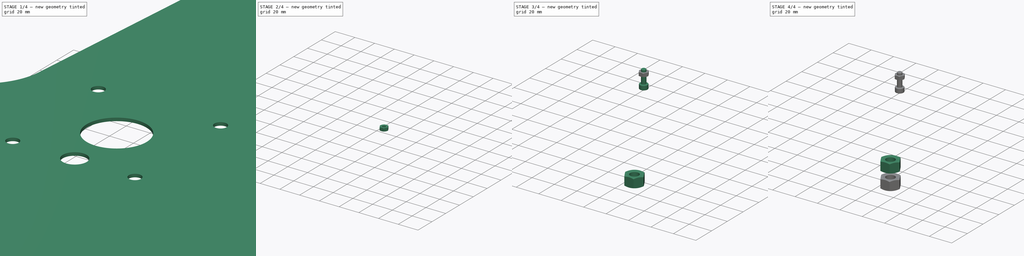
[diagram: build sequence overview — one tinted view per stage of 4, left to right]
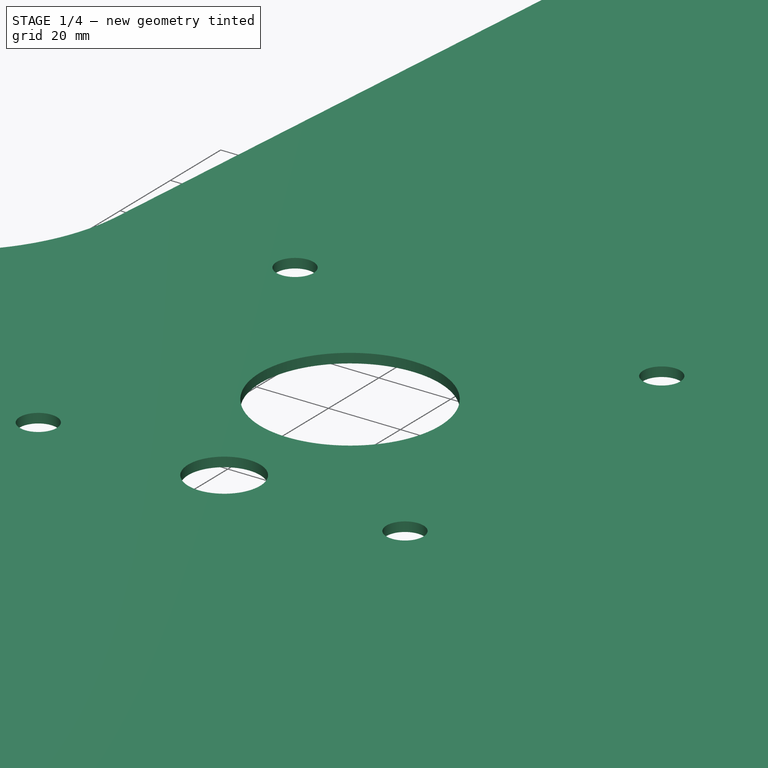
[diagram: stage 1 of 4 — iso view after this stage's code; geometry added in this stage tinted green]
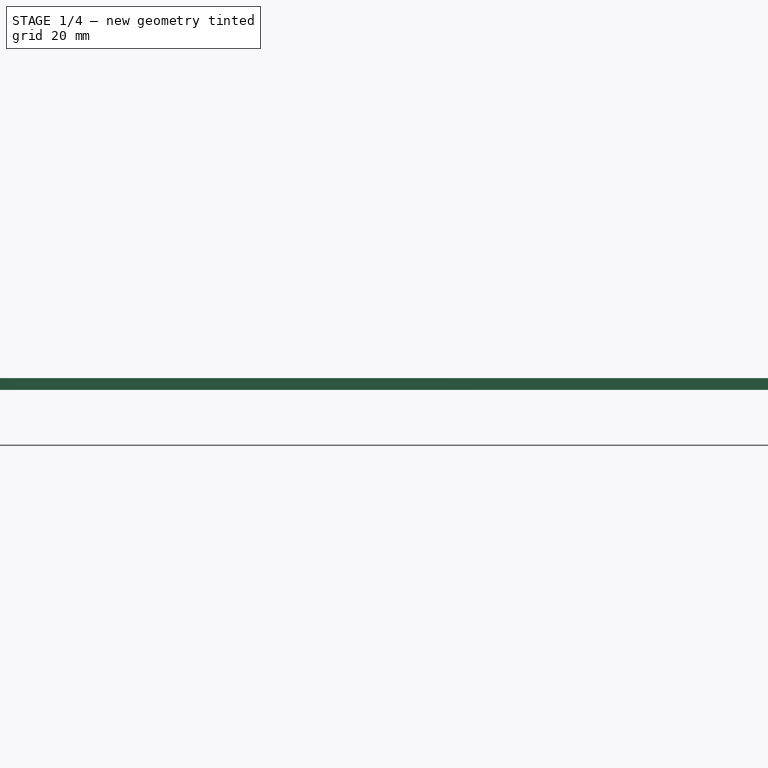
[diagram: stage 1 of 4 — front view after this stage's code; geometry added in this stage tinted green]
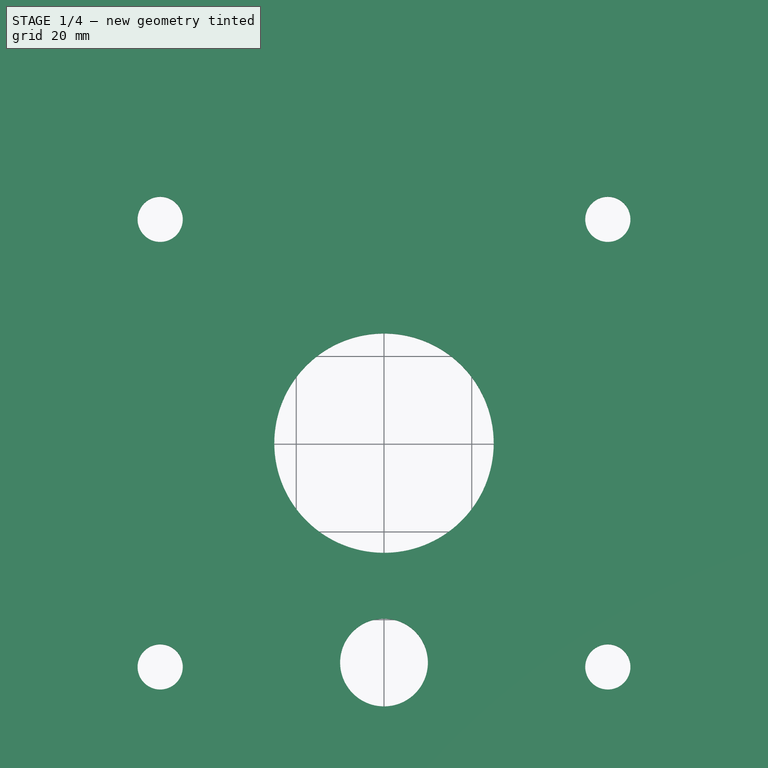
[diagram: stage 1 of 4 — top view after this stage's code; geometry added in this stage tinted green]
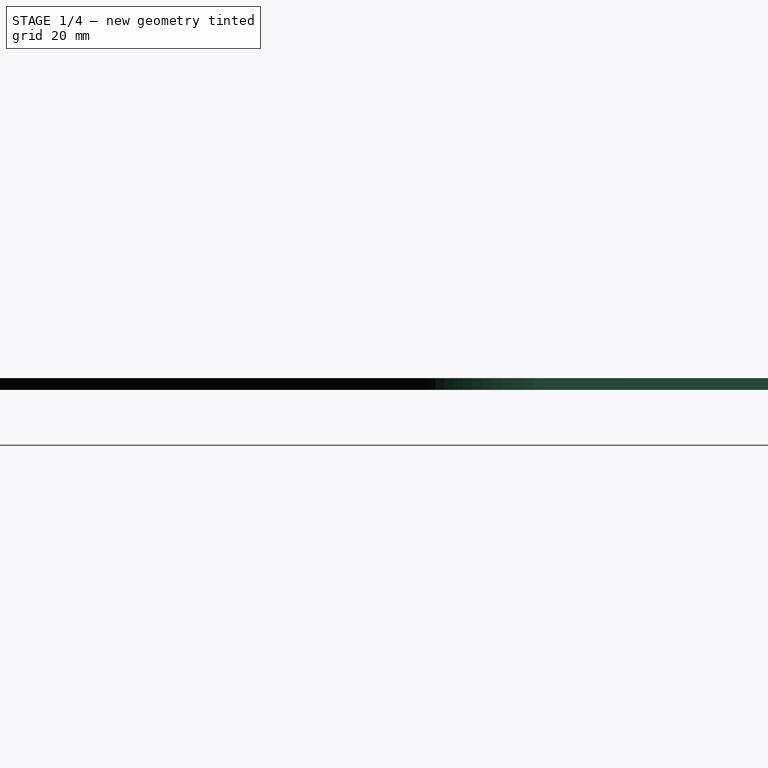
[diagram: stage 1 of 4 — right view after this stage's code; geometry added in this stage tinted green]
FCSTD DOCUMENT  (FreeCAD 0.20R29177 +426 (Git))
Label: ComputerPlatform
License: All rights reserved
LicenseURL: http://en.wikipedia.org/wiki/All_rights_reserved
objects: Part::FeaturePython×10, App::DocumentObjectGroup×7, Sketcher::SketchObject×4, PartDesign::CoordinateSystem×3, PartDesign::Hole×3, PartDesign::Pad×1, App::FeaturePython×1, PartDesign::Body×1, TechDraw::DrawSVGTemplate×1, TechDraw::DrawViewPart×1, TechDraw::DrawPage×1, App::Part×1
note: 26 computed .brp shape members not serialized (recipe doc carries the construction recipe); baked Part::Feature solids carry a one-line shape summary decoded from their .brp
EXTERNAL_REF file=DrivePlatform.FCStd obj=Sketch_1
EXTERNAL_REF file=Params.FCStd obj=Spreadsheet
EXTERNAL_REF file=PillowBlock.FCStd obj=Sketch001
EXTERNAL_REF file=GantryBracket.FCStd obj=Sketch
EXTERNAL_REF file=MotorBracket.FCStd obj=Sketch003

FEATURE [Sketcher::SketchObject] Sketch
  FullyConstrained = true
  MapMode = 5
  Support = -> [XY_Plane]
  expr: Constraints[21] = <<Params>>#<<Params>>.FrontSkateOffset + 33
  expr: Constraints[27] = <<DrivePlatform>>#<<Sketch_1>>.Constraints.BottomOffset + 10mm
  sketch-geometry (26):
    g0: LineSegment StartX=-200 StartY=-88.0112 StartZ=0 EndX=-200 EndY=-353.011 EndZ=0
    g1: LineSegment StartX=-197 StartY=-356.011 StartZ=0 EndX=197 EndY=-356.011 EndZ=0
    g2: LineSegment StartX=200 StartY=-353.011 StartZ=0 EndX=200 EndY=-88.0112 EndZ=0
    g3: Circle CenterX=0 CenterY=0 CenterZ=0 NormalX=0 NormalY=0 NormalZ=1 AngleXU=0 Radius=25
    g4: GeomPoint X=200 Y=-356.011 Z=0
    g5: GeomPoint X=-200 Y=-356.011 Z=0
    g6: ArcOfCircle CenterX=-180 CenterY=-88.0112 CenterZ=0 NormalX=0 NormalY=0 NormalZ=1 AngleXU=0 Radius=20 StartAngle=2.42945 EndAngle=3.14159
    g7: ArcOfCircle CenterX=180 CenterY=-88.0112 CenterZ=0 NormalX=0 NormalY=0 NormalZ=1 AngleXU=0 Radius=20 StartAngle=3e-16 EndAngle=0.71214
    g8: GeomPoint X=0 Y=-356.011 Z=0
    g9: LineSegment StartX=-60 StartY=383 StartZ=0 EndX=60 EndY=383 EndZ=0
    g10: GeomPoint X=0 Y=383 Z=0
    g11: ArcOfCircle CenterX=60 CenterY=369 CenterZ=0 NormalX=0 NormalY=0 NormalZ=1 AngleXU=0 Radius=14 StartAngle=0.0811809 EndAngle=1.5708
    g12: ArcOfCircle CenterX=-60 CenterY=369 CenterZ=0 NormalX=0 NormalY=0 NormalZ=1 AngleXU=0 Radius=14 StartAngle=1.5708 EndAngle=3.06041
    g13: LineSegment StartX=-180 StartY=-88.0112 StartZ=0 EndX=180 EndY=-88.0112 EndZ=0
    g14: ArcOfCircle CenterX=197 CenterY=-353.011 CenterZ=0 NormalX=0 NormalY=0 NormalZ=1 AngleXU=0 Radius=3 StartAngle=4.71239 EndAngle=6.28319
    g15: GeomPoint X=200 Y=-356.011 Z=0
    g16: ArcOfCircle CenterX=-197 CenterY=-353.011 CenterZ=0 NormalX=0 NormalY=0 NormalZ=1 AngleXU=0 Radius=3 StartAngle=3.14159 EndAngle=4.71239
    g17: GeomPoint X=-200 Y=-356.011 Z=0
    g18: LineSegment StartX=73.9539 StartY=370.135 StartZ=0 EndX=100 EndY=50 EndZ=0
    g19: ArcOfCircle CenterX=149.835 CenterY=54.0546 CenterZ=0 NormalX=0 NormalY=0 NormalZ=1 AngleXU=0 Radius=50 StartAngle=3.22277 EndAngle=3.85373
    g20: LineSegment StartX=111.987 StartY=21.3818 StartZ=0 EndX=195.139 EndY=-74.9421 EndZ=0
    g21: LineSegment StartX=-73.9539 StartY=370.135 StartZ=0 EndX=-100 EndY=50 EndZ=0
    g22: LineSegment StartX=-111.987 StartY=21.3818 StartZ=0 EndX=-195.139 EndY=-74.9421 EndZ=0
    g23: ArcOfCircle CenterX=-149.835 CenterY=54.0546 CenterZ=0 NormalX=0 NormalY=0 NormalZ=1 AngleXU=0 Radius=50 StartAngle=5.57105 EndAngle=6.202
    g24: LineSegment StartX=-100 StartY=50 StartZ=0 EndX=100 EndY=50 EndZ=0
    g25: Circle CenterX=0 CenterY=-50 CenterZ=0 NormalX=0 NormalY=0 NormalZ=1 AngleXU=0 Radius=10
  constraints (59):
    c: Vertical(g0)
    c: Horizontal(g1)
    c: Vertical(g2)
    c: DistanceX(g5,g4) = 400
    c: Diameter(g3) = 50
    c: Coincident(g3,g-1)
    c: PointOnObject(g8,g-2)
    c: Symmetric(g15,g17,g8)
    c: DistanceY(g17,g0) = 268
    c: Equal(g6,g7)
    c: Radius(g7) = 20
    c: Horizontal(g9)
    c: PointOnObject(g10,g-2)
    c: Tangent(g9,g11) = 1.5708
    c: Tangent(g9,g12) = 1.5708
    c: Radius(g11) = 14
    c: Coincident(g15,g4)
    c: Coincident(g17,g5)
    c: Equal(g11,g12)
    c: Symmetric(g9,g9,g10)
    c: DistanceX(g12,g11) = 120
    c: DistanceY(g3,g10) = 383
    c: Tangent(g7,g2) = -1.5708
    c: Tangent(g6,g0) = -1.5708
    c: Coincident(g13,g6)
    c: Coincident(g13,g7)
    c: Horizontal(g13)
    c: DistanceY(g7,g3) = 88.0112
    c: PointOnObject(g15,g2)
    c: PointOnObject(g15,g1)
    c: Tangent(g2,g14) = -1.5708
    c: Tangent(g1,g14) = -1.5708
    c: PointOnObject(g17,g0)
    c: PointOnObject(g17,g1)
    c: Tangent(g0,g16) = -1.5708
    c: Tangent(g1,g16) = -1.5708
    c: Equal(g16,g14)
    c: Radius(g14) = 3
    c: Tangent(g19,g18) = -1.5708
    c: Radius(g19) = 50
    c: Tangent(g20,g7) = 1.5708
    c: Tangent(g20,g19) = -1.5708
    c: Coincident(g21,g12)
    c: Tangent(g22,g6) = -1.5708
    c: Tangent(g23,g22) = 1.5708
    c: Tangent(g23,g21) = 1.5708
    c: Equal(g23,g19)
    c: Coincident(g24,g21)
    c: Coincident(g24,g18)
    c: Horizontal(g24)
    c: Equal(g22,g20)
    c: Equal(g18,g21)
    c: DistanceX(g24,g24) = 200
    c: DistanceY(g3,g18) = 50
    c: Tangent(g18,g11) = 1.5708
    c: DistanceY(g1,g9) = 739.011
    c: PointOnObject(g25,g-2)
    c: Diameter(g25) = 20
    c: DistanceY(g25,g3) = 50
FEATURE [PartDesign::Pad] Pad
  Direction = (0,0,1)
  Length = 2.656
  Length2 = 10
  Profile = -> Sketch
  ReferenceAxis = -> Sketch [N_Axis]
  Type = 0
  expr: Length = <<Params>>#<<Params>>.SheetMetalThickness
FEATURE [App::DocumentObjectGroup] Parts
FEATURE [PartDesign::CoordinateSystem] LCS_Origin
  AttacherType = Attacher::AttachEngine3D
  MapMode = 2
  Support = -> [X_Axis001]
FEATURE [App::FeaturePython] Variables  # WARN: FeaturePython — macro-defined, semantics opaque (R4)
  Type = App::PropertyContainer
FEATURE [App::DocumentObjectGroup] Constraints
FEATURE [App::DocumentObjectGroup] Configurations
FEATURE [PartDesign::CoordinateSystem] LCS_TopPivot
  AttacherType = Attacher::AttachEngine3D
  AttachmentOffset = pos=(0,0,2.656) rot=(0,0,1;0rad)
  MapMode = 2
  Placement = pos=(0,0,2.656) rot=(0,0,1;0rad)
  Support = -> [LCS_Origin]
  expr: .AttachmentOffset.Base.z = <<Pad>>.Length
FEATURE [Sketcher::SketchObject] Sketch001
  FullyConstrained = true
  MapMode = 5
  Support = -> [XY_Plane]
  expr: Constraints[11] = <<PillowBlock>>#<<Sketch001>>.Constraints.MountHoleSpacing
  sketch-geometry (6):
    g0: Circle CenterX=51.005 CenterY=51.005 CenterZ=0 NormalX=0 NormalY=0 NormalZ=1 AngleXU=0 Radius=2.5
    g1: Circle CenterX=-51.005 CenterY=51.005 CenterZ=0 NormalX=0 NormalY=0 NormalZ=1 AngleXU=0 Radius=2.5
    g2: Circle CenterX=-51.005 CenterY=-51.005 CenterZ=0 NormalX=0 NormalY=0 NormalZ=1 AngleXU=0 Radius=2.5
    g3: Circle CenterX=51.005 CenterY=-51.005 CenterZ=0 NormalX=0 NormalY=0 NormalZ=1 AngleXU=0 Radius=2.5
    g4: LineSegment StartX=51.005 StartY=51.005 StartZ=0 EndX=51.005 EndY=-51.005 EndZ=0
    g5: LineSegment StartX=51.005 StartY=51.005 StartZ=0 EndX=-51.005 EndY=51.005 EndZ=0
  constraints (14):
    c: Coincident(g4,g0)
    c: Coincident(g4,g3)
    c: Coincident(g5,g0)
    c: Coincident(g5,g1)
    c: Equal(g5,g4)
    c: Vertical(g4)
    c: Horizontal(g5)
    c: Equal(g0,g1)
    c: Equal(g1,g2)
    c: Equal(g2,g3)
    c: Diameter(g0) = 5
    c: DistanceY(g4,g4) = 102.01
    c: Symmetric(g3,g1,g-1)
    c: Symmetric(g2,g0,g-1)
FEATURE [PartDesign::Hole] Hole  label="BaseMountHoles"
  BaseFeature = -> Pad
  CustomThreadClearance = 0
  Depth = 1522.85
  DepthType = 1
  Diameter = 10.3
  DrillForDepth = false
  DrillPoint = 1
  DrillPointAngle = 118
  HoleCutCountersinkAngle = 90
  HoleCutCustomValues = false
  HoleCutDepth = 0
  HoleCutDiameter = 12
  HoleCutType = 0
  ModelThread = false
  Profile = -> Sketch001
  Reversed = true
  Tapered = false
  TaperedAngle = 90
  ThreadClass = 0
  ThreadDepth = 1522.85
  ThreadDepthType = 0
  ThreadDirection = 0
  ThreadFit = 0
  ThreadSize = 11
  ThreadType = 3
  Threaded = false
  UseCustomThreadClearance = false
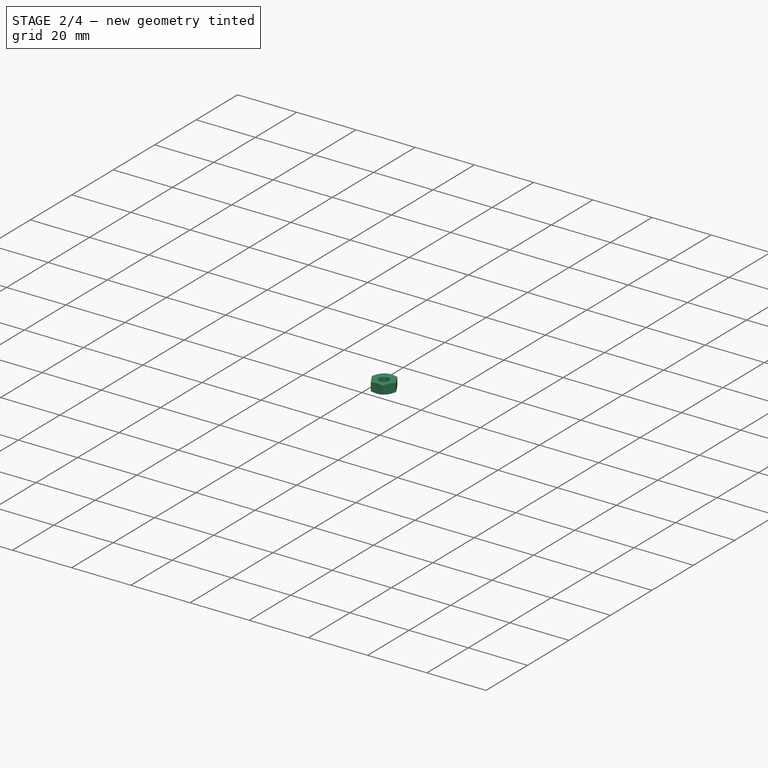
[diagram: stage 2 of 4 — iso view after this stage's code; geometry added in this stage tinted green]
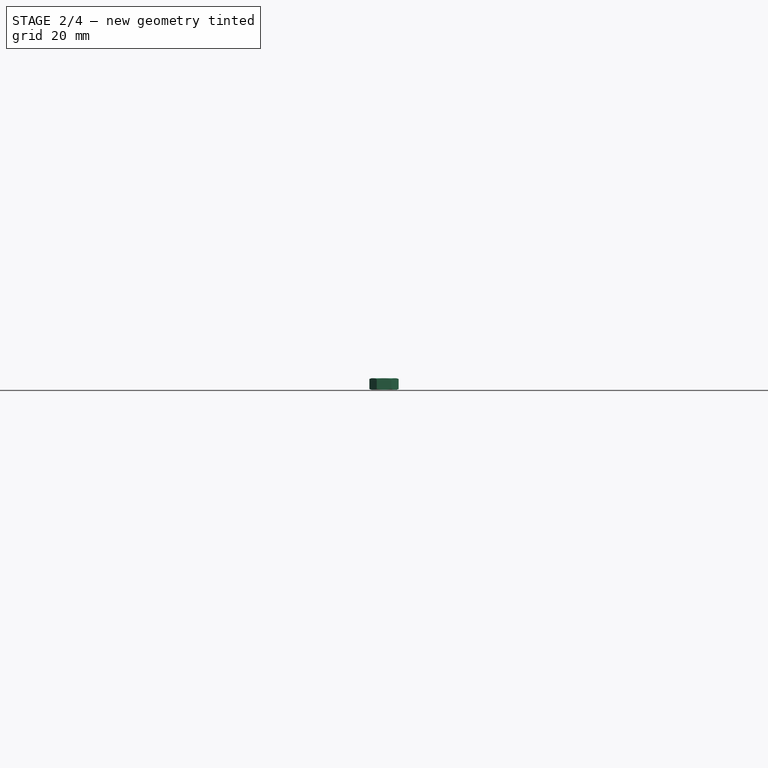
[diagram: stage 2 of 4 — front view after this stage's code; geometry added in this stage tinted green]
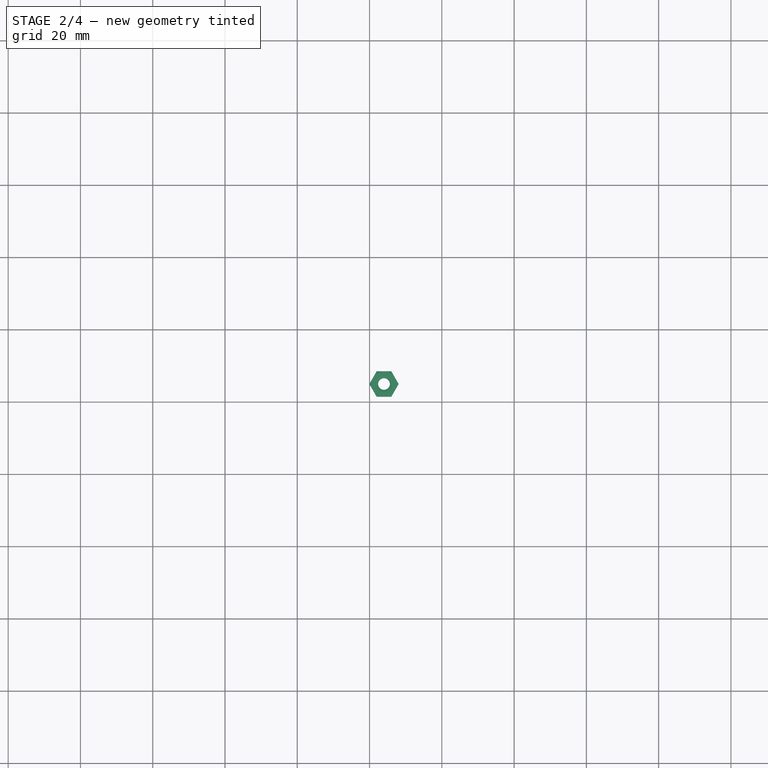
[diagram: stage 2 of 4 — top view after this stage's code; geometry added in this stage tinted green]
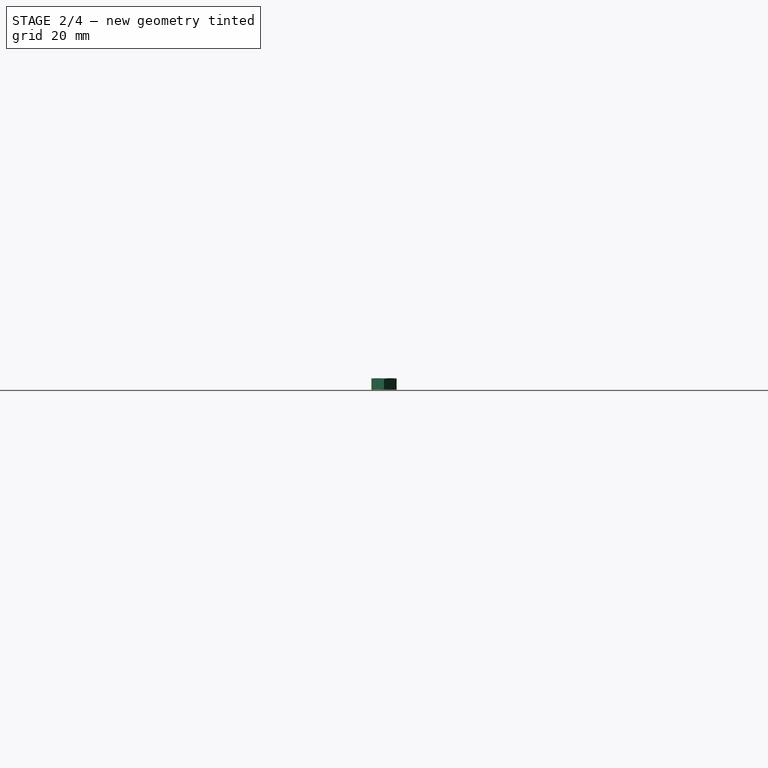
[diagram: stage 2 of 4 — right view after this stage's code; geometry added in this stage tinted green]
FEATURE [Sketcher::SketchObject] Sketch002
  FullyConstrained = true
  MapMode = 5
  Support = -> [XY_Plane]
  expr: Constraints[15] = <<Params>>#<<Params>>.FrontSkateOffset
  expr: Constraints[19] = <<Params>>#<<Params>>.ExtensionArmCenterOffset
  expr: Constraints[2] = <<GantryBracket>>#<<Sketch>>.Constraints.HoleSpacing
  expr: Constraints[7] = <<Params>>#<<Params>>.RearSkateOffset
  sketch-geometry (9):
    g0: Circle CenterX=42.85 CenterY=-150 CenterZ=0 NormalX=0 NormalY=0 NormalZ=1 AngleXU=0 Radius=1
    g1: Circle CenterX=3.15 CenterY=-150 CenterZ=0 NormalX=0 NormalY=0 NormalZ=1 AngleXU=0 Radius=1
    g2: LineSegment StartX=3.15 StartY=-150 StartZ=0 EndX=42.85 EndY=-150 EndZ=0
    g3: GeomPoint X=23 Y=-150 Z=0
    g4: Circle CenterX=42.85 CenterY=350 CenterZ=0 NormalX=0 NormalY=0 NormalZ=1 AngleXU=0 Radius=1
    g5: Circle CenterX=3.15 CenterY=350 CenterZ=0 NormalX=0 NormalY=0 NormalZ=1 AngleXU=0 Radius=1
    g6: LineSegment StartX=3.15 StartY=350 StartZ=0 EndX=42.85 EndY=350 EndZ=0
    g7: GeomPoint X=23 Y=350 Z=0
    g8: LineSegment StartX=23 StartY=-150 StartZ=0 EndX=23 EndY=350 EndZ=0
  constraints (20):
    c: Equal(g0,g1)
    c: Diameter(g0) = 2
    c: DistanceX(g1,g0) = 39.7
    c: Coincident(g2,g1)
    c: Coincident(g2,g0)
    c: Horizontal(g2)
    c: Symmetric(g1,g0,g3)
    c: DistanceY(g3,g-1) = 150
    c: Equal(g4,g5)
    c: Equal(g0,g4) = 2
    c: Coincident(g6,g5)
    c: Coincident(g6,g4)
    c: Horizontal(g6)
    c: Symmetric(g5,g4,g7)
    c: Equal(g6,g2)
    c: DistanceY(g-1,g5) = 350
    c: Coincident(g8,g3)
    c: Vertical(g8)
    c: Coincident(g8,g7)
    c: DistanceX(g-1,g3) = 23
FEATURE [PartDesign::Hole] Hole001  label="ArmSkateMountHoles"
  BaseFeature = -> Hole
  CustomThreadClearance = 0
  Depth = 1522.85
  DepthType = 1
  Diameter = 5.5
  DrillForDepth = false
  DrillPoint = 1
  DrillPointAngle = 118
  HoleCutCountersinkAngle = 90
  HoleCutCustomValues = false
  HoleCutDepth = 0
  HoleCutDiameter = 6.1
  HoleCutType = 0
  ModelThread = false
  Profile = -> Sketch002
  Reversed = true
  Tapered = false
  TaperedAngle = 90
  ThreadClass = 0
  ThreadDepth = 1522.85
  ThreadDepthType = 0
  ThreadDirection = 0
  ThreadFit = 0
  ThreadSize = 13
  ThreadType = 1
  Threaded = false
  UseCustomThreadClearance = false
FEATURE [Sketcher::SketchObject] Sketch003
  AttachmentOffset = pos=(-36,100,0) rot=(0,0,1;0rad)
  FullyConstrained = true
  MapMode = 5
  Placement = pos=(-36,100,0) rot=(0,0,1;0rad)
  Support = -> [XY_Plane]
  expr: .AttachmentOffset.Base.x = <<Params>>#<<Params>>.ExtensionDriverOffsetY
  expr: .AttachmentOffset.Base.y = <<Params>>#<<Params>>.ExtensionDriverOffsetX
  expr: Constraints[7] = <<MotorBracket>>#<<SlotSketch>>.Constraints.SlotOffsetX * 2
  sketch-geometry (4):
    g0: Circle CenterX=0 CenterY=15 CenterZ=0 NormalX=0 NormalY=0 NormalZ=1 AngleXU=0 Radius=1
    g1: Circle CenterX=0 CenterY=-15 CenterZ=0 NormalX=0 NormalY=0 NormalZ=1 AngleXU=0 Radius=1
    g2: LineSegment StartX=0 StartY=15 StartZ=0 EndX=0 EndY=-15 EndZ=0
    g3: GeomPoint X=0 Y=0 Z=0
  constraints (8):
    c: Coincident(g2,g0)
    c: Coincident(g2,g1)
    c: Vertical(g2)
    c: Equal(g1,g0)
    c: Diameter(g1) = 2
    c: Symmetric(g1,g0,g3)
    c: Coincident(g-1,g3)
    c: DistanceY(g2,g2) = 30
FEATURE [PartDesign::Hole] Hole002  label="ExtensionDriverMountHoles"
  BaseFeature = -> Hole001
  CustomThreadClearance = 0
  Depth = 25
  DepthType = 0
  Diameter = 4.5
  DrillForDepth = false
  DrillPoint = 1
  DrillPointAngle = 118
  HoleCutCountersinkAngle = 90
  HoleCutCustomValues = false
  HoleCutDepth = 0
  HoleCutDiameter = 6.1
  HoleCutType = 0
  ModelThread = false
  Profile = -> Sketch003
  Reversed = true
  Tapered = false
  TaperedAngle = 90
  ThreadClass = 0
  ThreadDepth = 25
  ThreadDepthType = 0
  ThreadDirection = 0
  ThreadFit = 0
  ThreadSize = 11
  ThreadType = 1
  Threaded = false
  UseCustomThreadClearance = false
FEATURE [Part::FeaturePython] Nut005  label="M4-Nut"  # Fasteners workbench fastener (typed FeaturePython)
  Placement = pos=(-36,85,2.656) rot=(0,0,1;0rad)
  baseObject = -> Body [Edge51]
  diameter = 6
  invert = false
  leftHanded = false
  matchOuter = false
  offset = 0
  thread = false
  type = 22
FEATURE [App::DocumentObjectGroup] ExtensionDriver
  Group = -> [Screw,Nut005]
FEATURE [App::DocumentObjectGroup] Fasteners
  Group = -> [Top,Bottom,ExtensionDriver]
FEATURE [App::Part] Assembly
  AssemblyType = Part::Link
  Group = -> [Variables,Constraints,Configurations,Body,Fasteners,Top,Bottom,ExtensionDriver,LCS_ExtensionDriver,LCS_TopPivot,LCS_Origin,Washer,Nut,Washer004,Nut004,Circular_Nut,Circular_Washer004,Circular_Nut004,Circular_Washer,Screw,Nut005]
  Origin = -> Origin001
  Type = Assembly
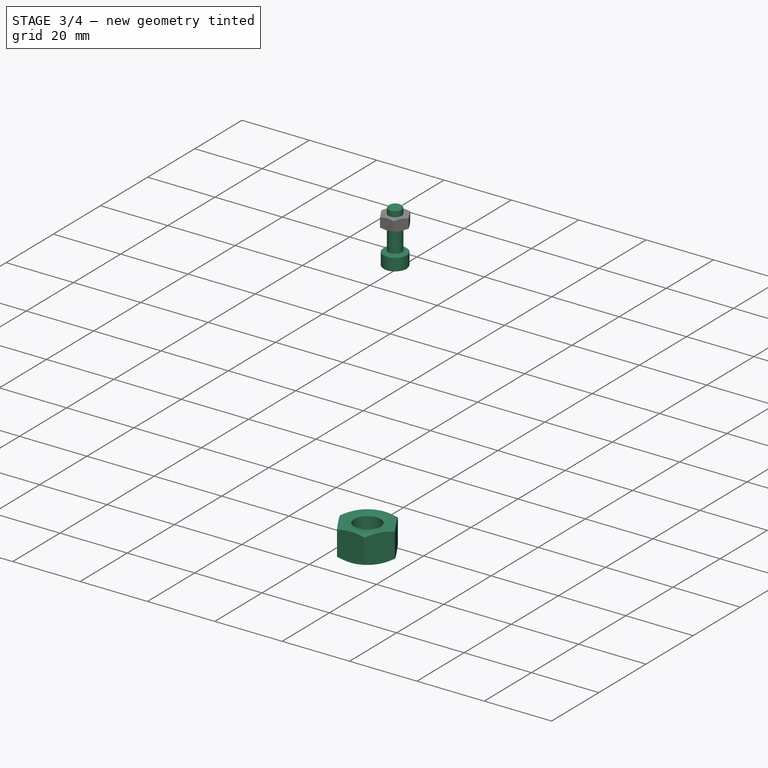
[diagram: stage 3 of 4 — iso view after this stage's code; geometry added in this stage tinted green]
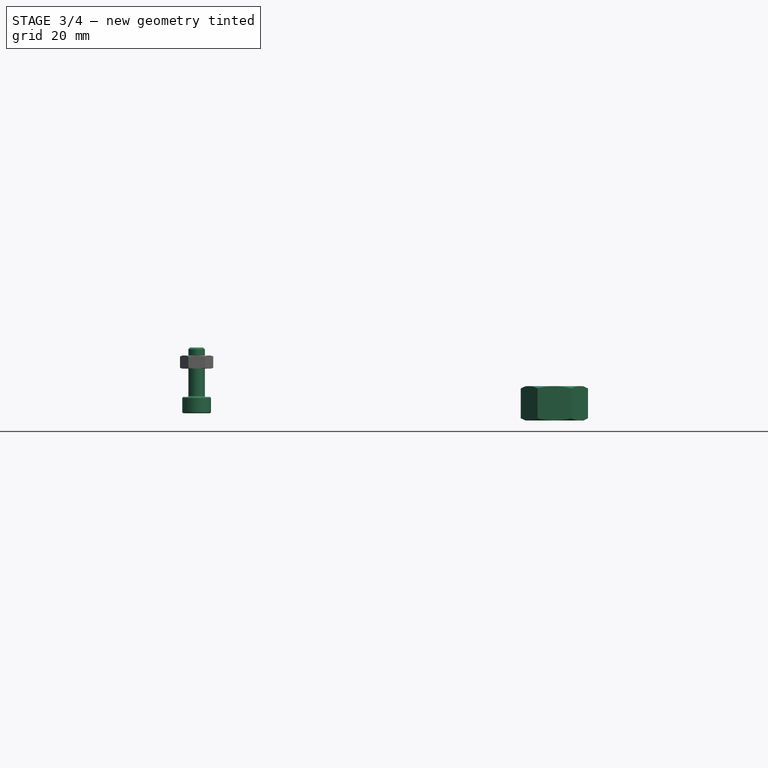
[diagram: stage 3 of 4 — front view after this stage's code; geometry added in this stage tinted green]
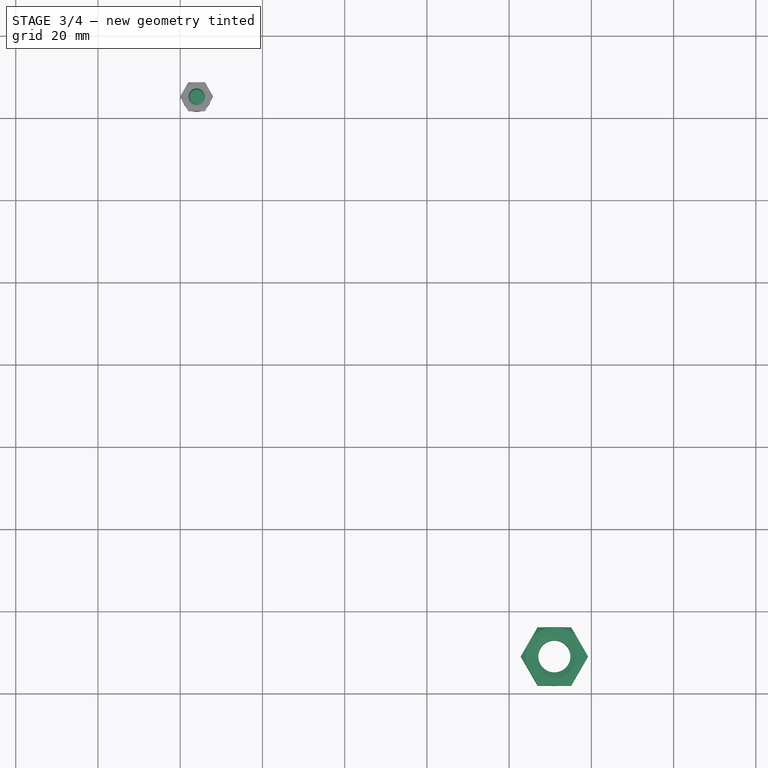
[diagram: stage 3 of 4 — top view after this stage's code; geometry added in this stage tinted green]
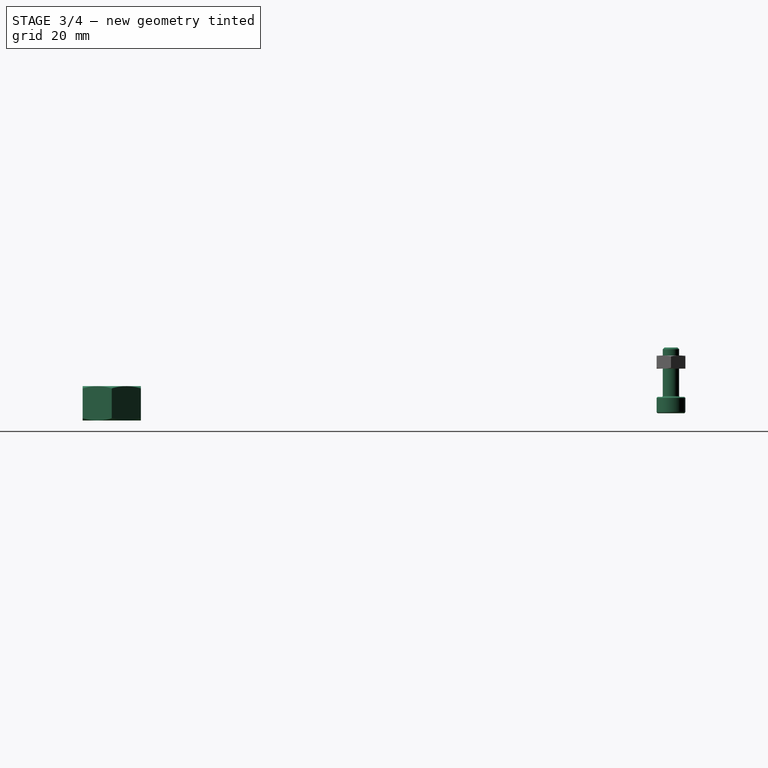
[diagram: stage 3 of 4 — right view after this stage's code; geometry added in this stage tinted green]
FEATURE [Part::FeaturePython] Washer  label="3/8in-Washer001"  # Fasteners workbench fastener (typed FeaturePython)
  Placement = pos=(51.005,-51.005,0) rot=(1,0,0;3.14159rad)
  baseObject = -> Sketch001 [Edge4]
  diameter = 13
  invert = true
  matchOuter = true
  offset = 0
  type = 1
FEATURE [Part::FeaturePython] Nut  label="3/8in-Nut001"  # Fasteners workbench fastener (typed FeaturePython)
  Placement = pos=(51.005,-51.005,-1.6002) rot=(1,0,0;3.14159rad)
  baseObject = -> Washer [Edge1]
  diameter = 3
  invert = false
  leftHanded = false
  matchOuter = true
  offset = 0
  thread = false
  type = 1
FEATURE [PartDesign::Body] Body
  Group = -> [Sketch,Pad,Sketch001,Hole,Sketch002,Hole001,Sketch003,Hole002]
  Origin = -> Origin
  Tip = -> Hole002
FEATURE [PartDesign::CoordinateSystem] LCS_ExtensionDriver
  AttacherType = Attacher::AttachEngine3D
  MapMode = 2
  Placement = pos=(-36,100,0) rot=(0,0,1;0rad)
  Support = -> [Sketch003]
FEATURE [TechDraw::DrawSVGTemplate] Template
  Height = 841
  Orientation = 1
  Width = 1189
FEATURE [TechDraw::DrawViewPart] View
  CoarseView = false
  Direction = (0,0,-1)
  Focus = 100
  HardHidden = false
  IsoCount = 0
  IsoHidden = false
  IsoVisible = false
  LockPosition = false
  Perspective = false
  Rotation = 0
  ScaleType = 0
  SeamHidden = false
  SeamVisible = true
  SmoothHidden = false
  SmoothVisible = true
  Source = -> [Hole002]
  X = 208.005
  XDirection = (1,0,0)
  Y = 379.986
FEATURE [TechDraw::DrawPage] Page
  KeepUpdated = true
  NextBalloonIndex = 1
  ProjectionType = 0
  Template = -> Template
  Views = -> [View]
FEATURE [Part::FeaturePython] Circular_Nut004  label="Circular_3/8in-Nut"  # Draft array (typed FeaturePython)
  AngleStep = 90
  ArrayType = Circular Array
  Axis = -> LCS_TopPivot [Z]
  AxisPlacement = pos=(0,0,2.656) rot=(0,0,1;0rad)
  Count = 4
  Index = 1
  PlacementList = 4 placements: [(51.005,-51.005,4.2562),(51.005,51.005,4.2562),(-51.005,51.005,4.2562),(-51.005,-51.005,4.2562)]
  Placer = pos=(0,0,0) rot=(0,0,1;4.71239rad)
  ScaleList = (4) [(1,1,1),(1,1,1),(1,1,1),(1,1,1)]
  Scaler = 1
  ShowElement = false
  SourceObject = -> Nut004
  expr: .Placer.Rotation.Angle = AngleStep * Index
  expr: AngleStep = 360 / Count
FEATURE [Part::FeaturePython] Circular_Washer004  label="Circular_3/8in-Washer"  # Draft array (typed FeaturePython)
  AngleStep = 90
  ArrayType = Circular Array
  Axis = -> LCS_TopPivot [Z]
  AxisPlacement = pos=(0,0,2.656) rot=(0,0,1;0rad)
  Count = 4
  Index = 1
  PlacementList = 4 placements: [(51.005,-51.005,2.656),(51.005,51.005,2.656),(-51.005,51.005,2.656),(-51.005,-51.005,2.656)]
  Placer = pos=(0,0,0) rot=(0,0,1;4.71239rad)
  ScaleList = (4) [(1,1,1),(1,1,1),(1,1,1),(1,1,1)]
  Scaler = 1
  ShowElement = false
  SourceObject = -> Washer004
  expr: .Placer.Rotation.Angle = AngleStep * Index
  expr: AngleStep = 360 / Count
FEATURE [App::DocumentObjectGroup] Top
  Group = -> [Washer004,Nut004,Circular_Nut004,Circular_Washer004]
FEATURE [Part::FeaturePython] Circular_Nut  label="Circular_3/8in-Nut001"  # Draft array (typed FeaturePython)
  AngleStep = 90
  ArrayType = Circular Array
  Axis = -> LCS_TopPivot [Z]
  AxisPlacement = pos=(0,0,2.656) rot=(0,0,1;0rad)
  Count = 4
  Index = 1
  PlacementList = 4 placements: [(51.005,-51.005,-1.6002),(51.005,51.005,-1.6002),(-51.005,51.005,-1.6002),(-51.005,-51.005,-1.6002)]
  Placer = pos=(0,0,0) rot=(0,0,1;4.71239rad)
  ScaleList = (4) [(1,1,1),(1,1,1),(1,1,1),(1,1,1)]
  Scaler = 1
  ShowElement = false
  SourceObject = -> Nut
  expr: .Placer.Rotation.Angle = AngleStep * Index
  expr: AngleStep = 360 / Count
FEATURE [Part::FeaturePython] Circular_Washer  label="Circular_3/8in-Washer001"  # Draft array (typed FeaturePython)
  AngleStep = 90
  ArrayType = Circular Array
  Axis = -> LCS_TopPivot [Z]
  AxisPlacement = pos=(0,0,2.656) rot=(0,0,1;0rad)
  Count = 4
  Index = 1
  PlacementList = 4 placements: [(51.005,-51.005,0),(51.005,51.005,-4.44089e-16),(-51.005,51.005,0),(-51.005,-51.005,0)]
  Placer = pos=(0,0,0) rot=(0,0,1;4.71239rad)
  ScaleList = (4) [(1,1,1),(1,1,1),(1,1,1),(1,1,1)]
  Scaler = 1
  ShowElement = false
  SourceObject = -> Washer
  expr: .Placer.Rotation.Angle = AngleStep * Index
  expr: AngleStep = 360 / Count
FEATURE [App::DocumentObjectGroup] Bottom
  Group = -> [Washer,Nut,Circular_Nut,Circular_Washer]
FEATURE [Part::FeaturePython] Screw  label="M4x12-Screw"  # Fasteners workbench fastener (typed FeaturePython)
  Placement = pos=(-36,85,-4.2) rot=(-1,0,0;3.14159rad)
  baseObject = -> Body [Edge26]
  diameter = 5
  invert = false
  leftHanded = false
  length = 3
  lengthCustom = 12
  matchOuter = false
  offset = 4.2
  thread = false
  type = 45
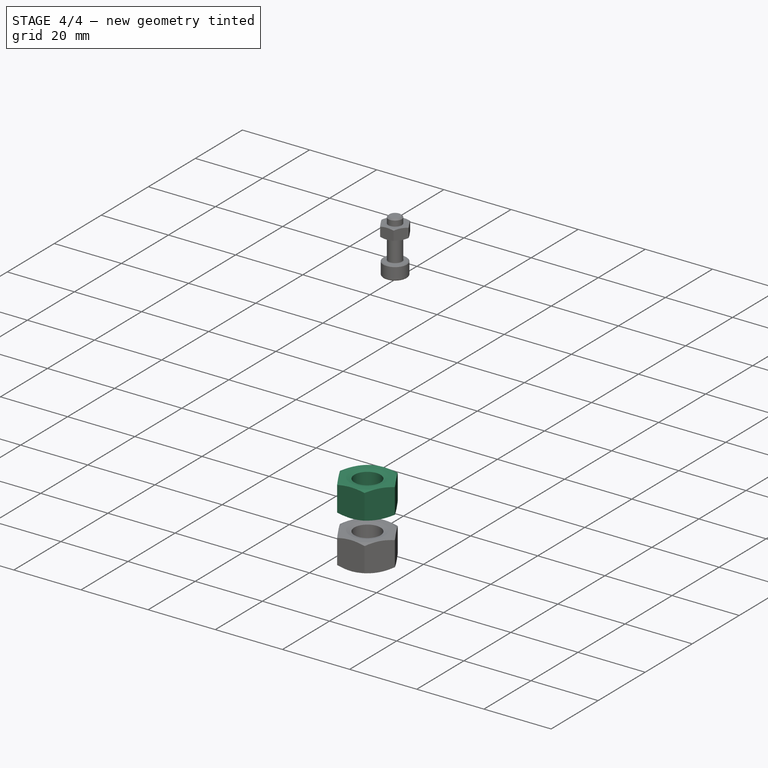
[diagram: stage 4 of 4 — iso view after this stage's code; geometry added in this stage tinted green]
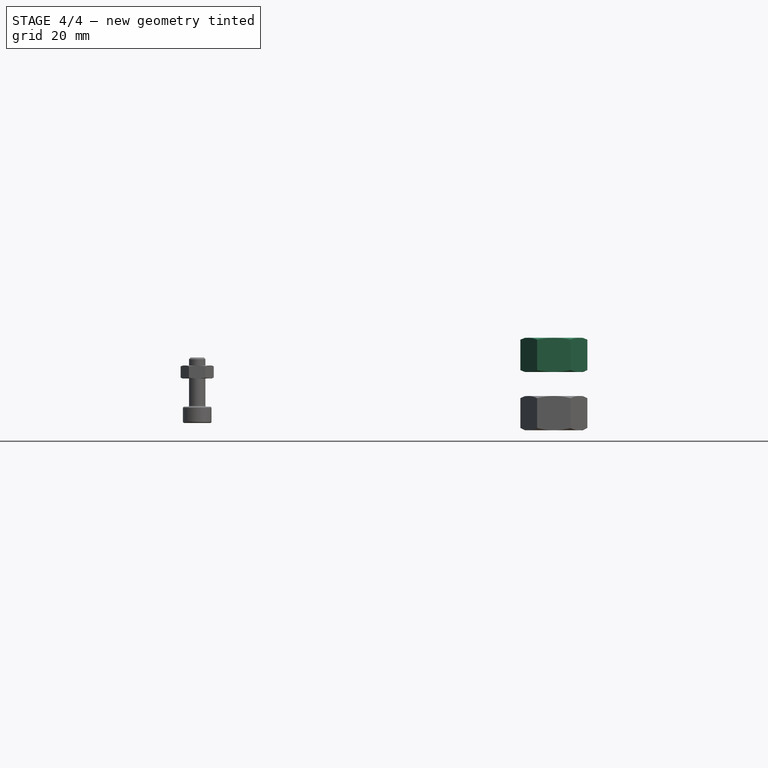
[diagram: stage 4 of 4 — front view after this stage's code; geometry added in this stage tinted green]
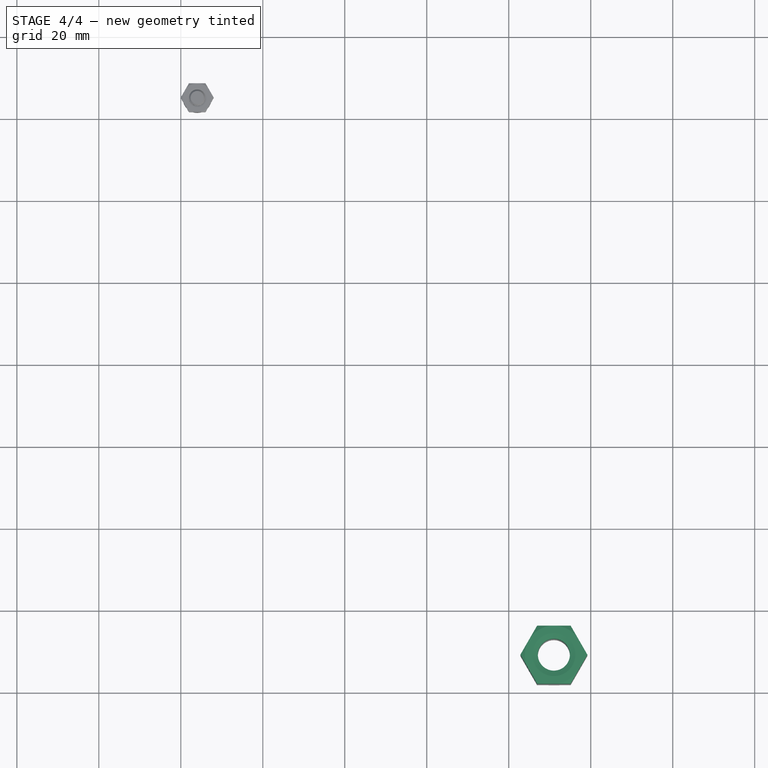
[diagram: stage 4 of 4 — top view after this stage's code; geometry added in this stage tinted green]
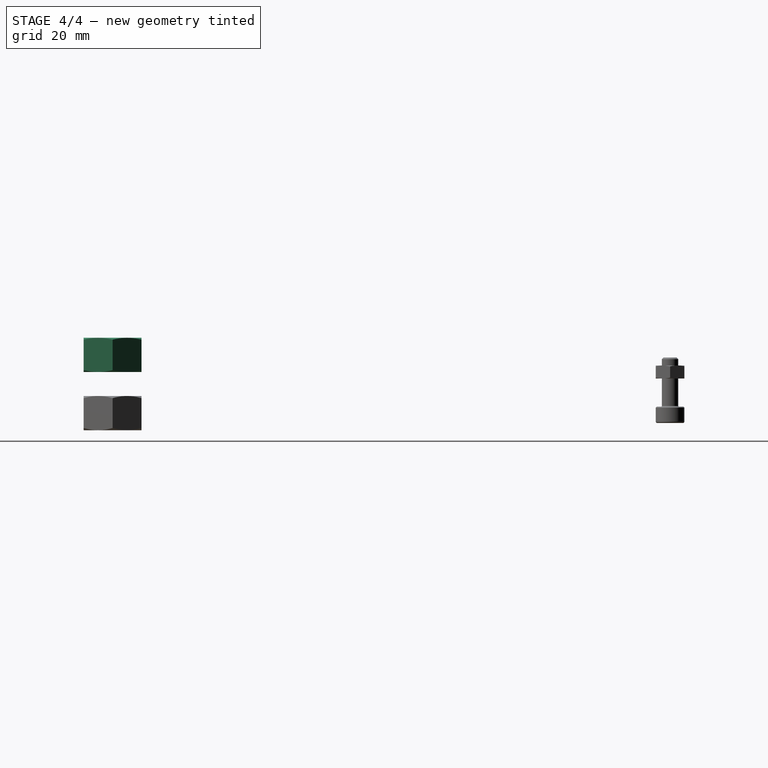
[diagram: stage 4 of 4 — right view after this stage's code; geometry added in this stage tinted green]
FEATURE [Part::FeaturePython] Washer004  label="3/8in-Washer"  # Fasteners workbench fastener (typed FeaturePython)
  Placement = pos=(51.005,-51.005,2.656) rot=(0,0,1;0rad)
  baseObject = -> Sketch001 [Edge4]
  diameter = 13
  invert = false
  matchOuter = false
  offset = 2.656
  type = 0
  expr: offset = <<Params>>#<<Params>>.SheetMetalThickness
FEATURE [Part::FeaturePython] Nut004  label="3/8in-Nut"  # Fasteners workbench fastener (typed FeaturePython)
  Placement = pos=(51.005,-51.005,4.2562) rot=(0,0,1;0rad)
  baseObject = -> Washer004 [Edge1]
  diameter = 3
  invert = false
  leftHanded = false
  matchOuter = false
  offset = 0
  thread = false
  type = 1
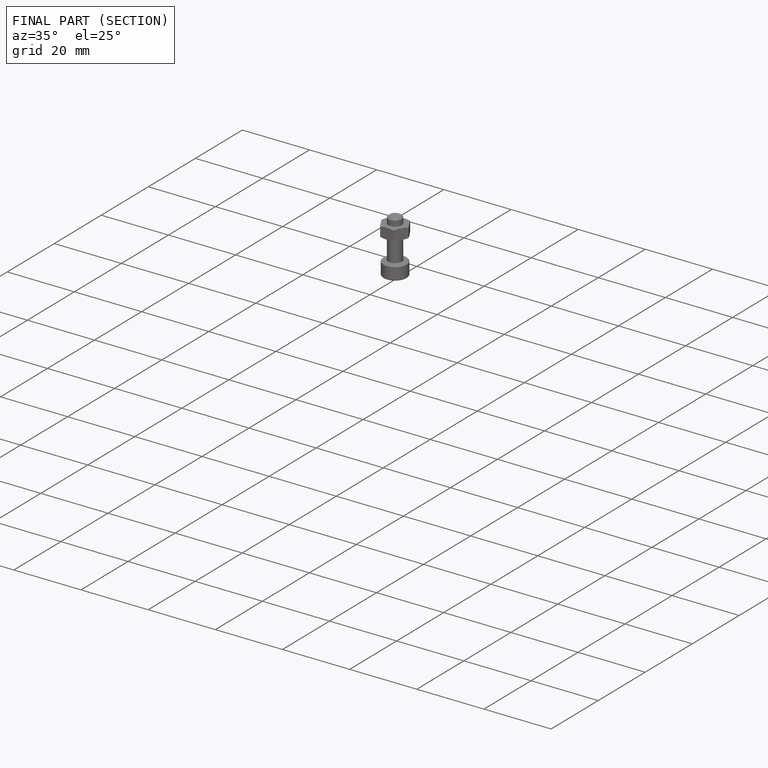
[diagram: finished part — half-section view (interior)]
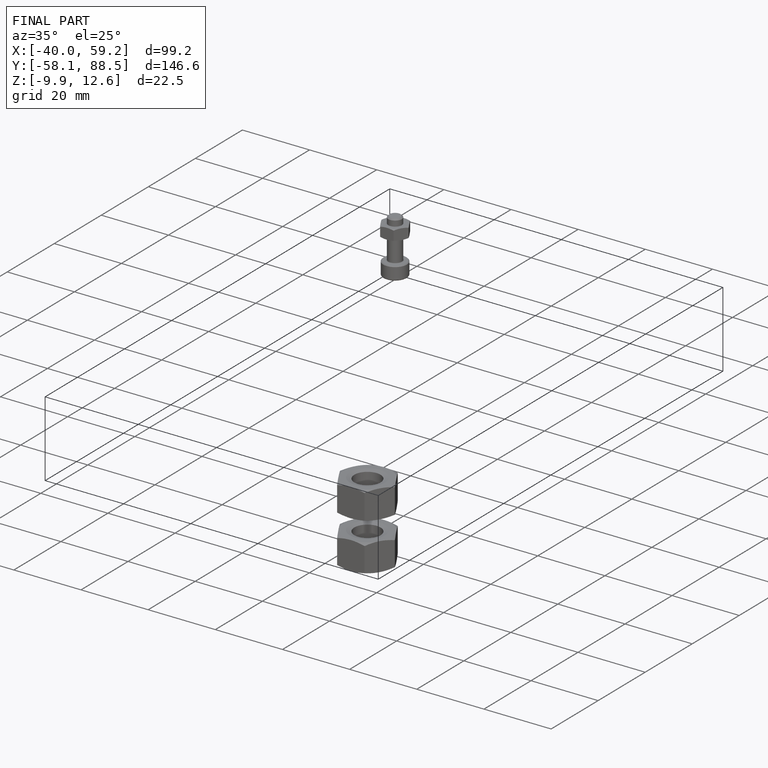
[diagram: finished part — iso view with bounding-box wireframe]
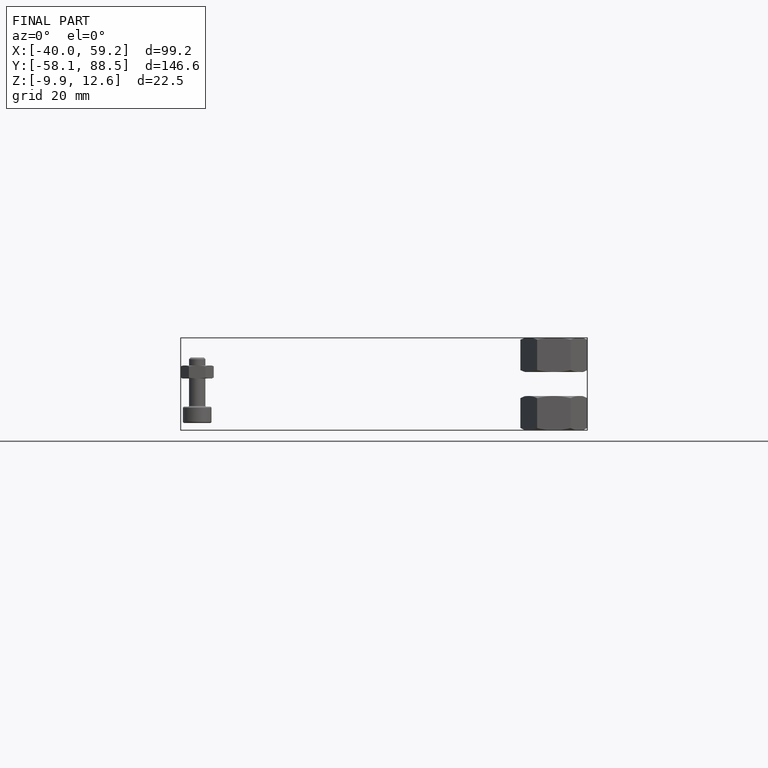
[diagram: finished part — front view with bounding-box wireframe]
